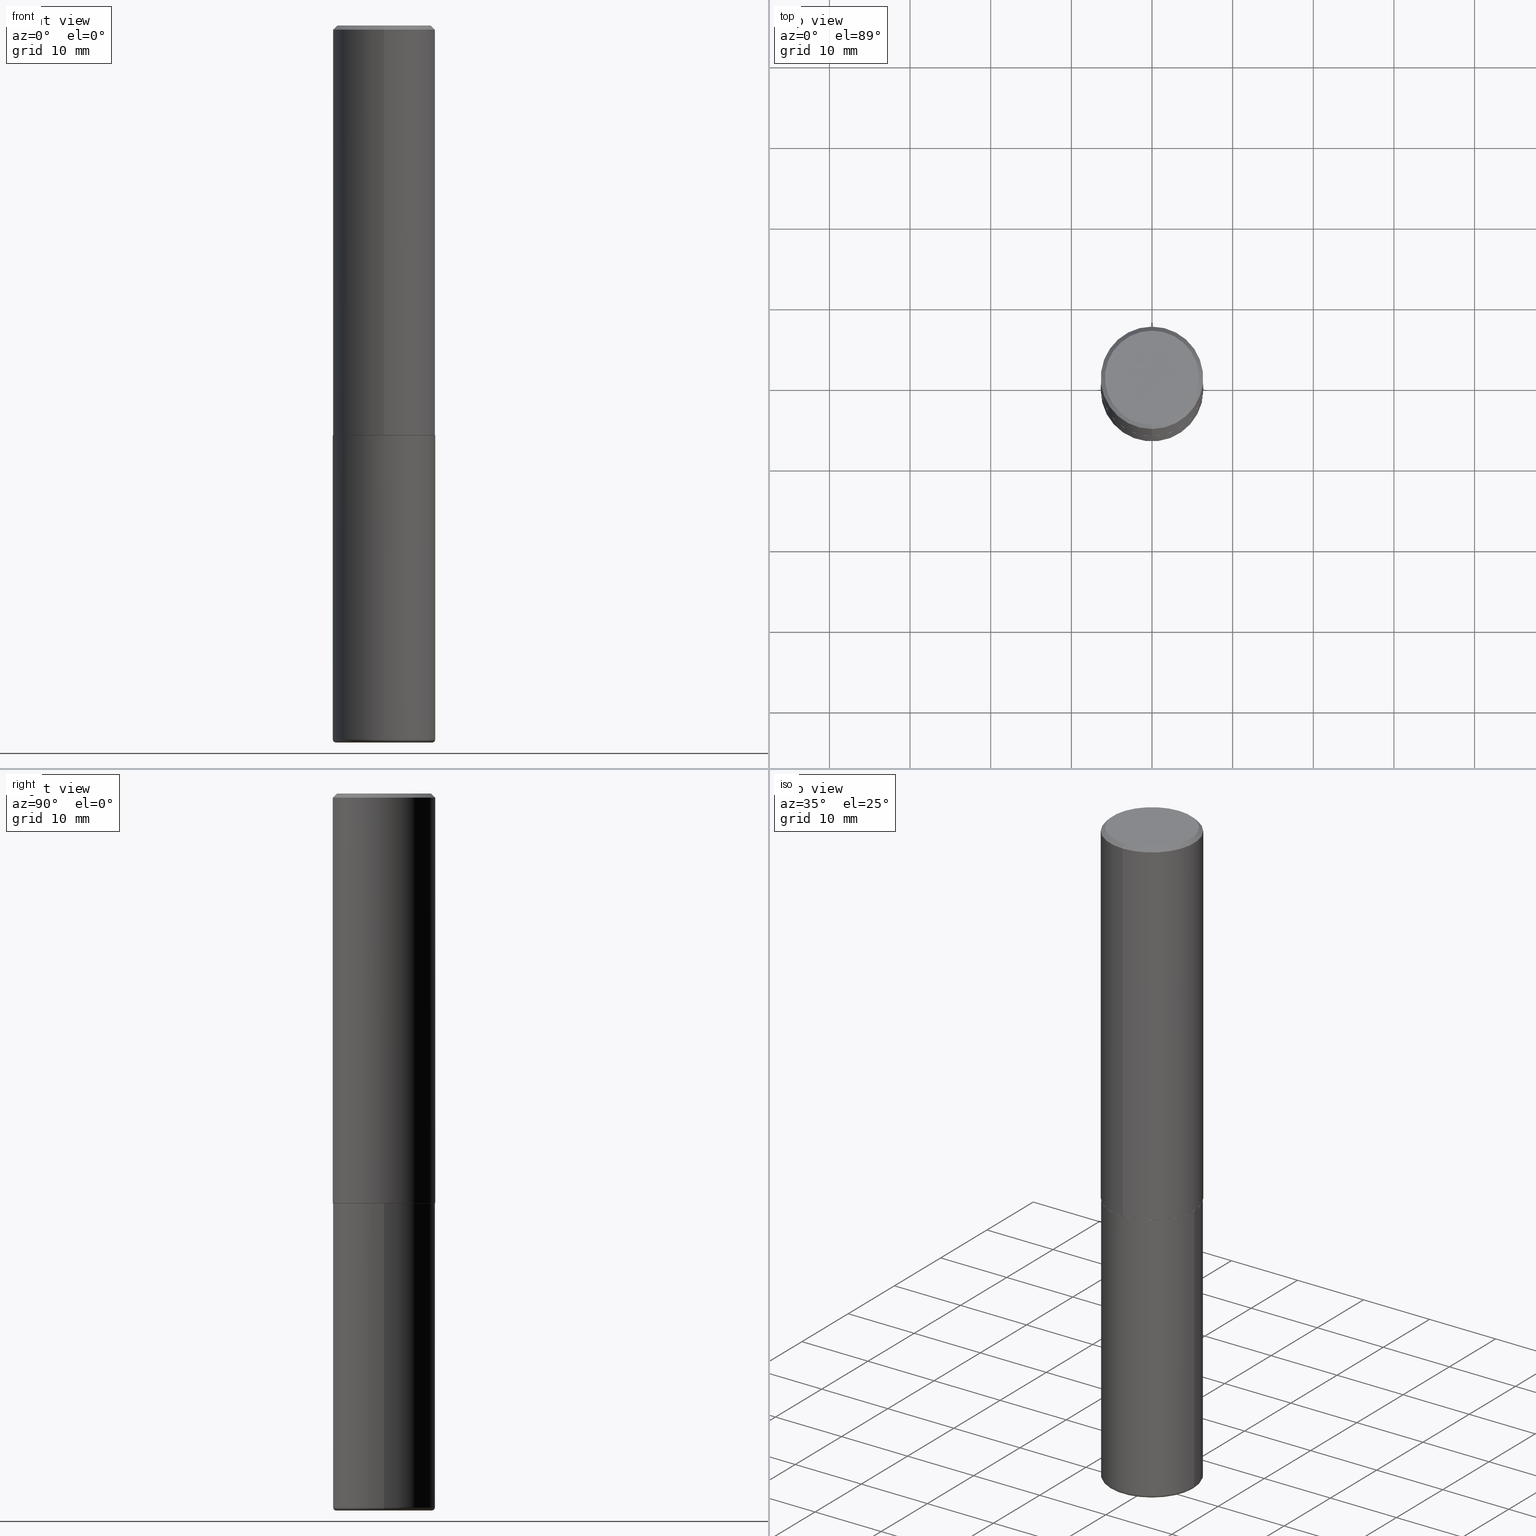
[diagram: canonical four-view strip — front | top / right | iso, engineering-drawing reading convention]
A machine part, canonical four-view strip (front | top / right | iso — engineering-drawing reading convention). The complete STEP part file that produces these views, byte-faithful:
ISO-10303-21;
HEADER;
FILE_DESCRIPTION (( 'STEP AP203' ),
    '1' );
FILE_NAME ('37527.STEP',
    '2024-03-02T03:22:55',
    ( '' ),
    ( '' ),
    'SwSTEP 2.0',
    'SolidWorks 2023',
    '' );
FILE_SCHEMA (( 'CONFIG_CONTROL_DESIGN' ));
ENDSEC;

DATA;
#1 = VECTOR ( 'NONE', #283, 39.37007874015748143 ) ;
#2 = CC_DESIGN_DATE_AND_TIME_ASSIGNMENT ( #41, #36, ( #155 ) ) ;
#3 = LINE ( 'NONE', #359, #1 ) ;
#4 = PERSON_AND_ORGANIZATION ( #214, #29 ) ;
#5 = CARTESIAN_POINT ( 'NONE',  ( 4.891474366573822799E-29, -6.982194015116654415E-15, -1.999999999999999778 ) ) ;
#6 = CARTESIAN_POINT ( 'NONE',  ( 1.745740669421566875E-15, 0.2499999999999999167, -0.02000000000000092676 ) ) ;
#7 = AXIS2_PLACEMENT_3D ( 'NONE', #293, #139, #255 ) ;
#8 = APPROVAL_DATE_TIME ( #319, #95 ) ;
#9 = ADVANCED_FACE ( 'NONE', ( #345 ), #152, .F. ) ;
#10 = DIRECTION ( 'NONE',  ( -6.982962677686265922E-15, -1.000000000000000000, 3.483106191921935554E-15 ) ) ;
#11 = APPROVAL_STATUS ( 'not_yet_approved' ) ;
#12 = CARTESIAN_POINT ( 'NONE',  ( 8.559140821647976968E-29, -1.222018468595100619E-14, -3.499999999999999112 ) ) ;
#13 = DIRECTION ( 'NONE',  ( 1.000000000000000000, -6.982962677686266711E-15, 4.883557194083112901E-29 ) ) ;
#14 = CARTESIAN_POINT ( 'NONE',  ( 1.776356839400276103E-15, 0.2499999999999933109, -1.999000000000000554 ) ) ;
#15 = AXIS2_PLACEMENT_3D ( 'NONE', #49, #404, #141 ) ;
#16 = DIRECTION ( 'NONE',  ( 6.982962677686265922E-15, 1.000000000000000000, -3.483106191921935554E-15 ) ) ;
#17 = CARTESIAN_POINT ( 'NONE',  ( 0.000000000000000000, 0.000000000000000000, 0.000000000000000000 ) ) ;
#18 = VERTEX_POINT ( 'NONE', #326 ) ;
#19 = VERTEX_POINT ( 'NONE', #146 ) ;
#20 = EDGE_CURVE ( 'NONE', #56, #307, #313, .T. ) ;
#21 = AXIS2_PLACEMENT_3D ( 'NONE', #46, #165, #324 ) ;
#22 = DIRECTION ( 'NONE',  ( -1.000000000000000000, 7.105427357601050768E-15, 0.000000000000000000 ) ) ;
#23 = ORIENTED_EDGE ( 'NONE', *, *, #122, .F. ) ;
#24 = ORIENTED_EDGE ( 'NONE', *, *, #344, .T. ) ;
#25 = ADVANCED_FACE ( 'NONE', ( #403 ), #124, .T. ) ;
#26 = EDGE_LOOP ( 'NONE', ( #144, #89, #304, #202 ) ) ;
#27 = EDGE_LOOP ( 'NONE', ( #181, #273, #342, #340 ) ) ;
#28 = AXIS2_PLACEMENT_3D ( 'NONE', #114, #230, #333 ) ;
#29 = ORGANIZATION ( 'UNSPECIFIED', 'UNSPECIFIED', '' ) ;
#30 = ORIENTED_EDGE ( 'NONE', *, *, #83, .T. ) ;
#31 = CARTESIAN_POINT ( 'NONE',  ( 4.891474366573822799E-29, -6.982194015116654415E-15, -1.999999999999999778 ) ) ;
#32 = CARTESIAN_POINT ( 'NONE',  ( 0.2500000000000000000, -1.745740669421566678E-15, 1.219044193948983948E-29 ) ) ;
#33 = ADVANCED_FACE ( 'NONE', ( #104 ), #231, .T. ) ;
#34 = PERSON_AND_ORGANIZATION ( #214, #29 ) ;
#35 = CARTESIAN_POINT ( 'NONE',  ( 4.891474366573836672E-31, -6.982194015116674235E-17, -0.02000000000000005593 ) ) ;
#36 = DATE_TIME_ROLE ( 'creation_date' ) ;
#37 = FACE_OUTER_BOUND ( 'NONE', #335, .T. ) ;
#38 = CARTESIAN_POINT ( 'NONE',  ( 8.559140821647976968E-29, -1.222018468595100619E-14, -3.499999999999999112 ) ) ;
#39 = APPROVAL_STATUS ( 'not_yet_approved' ) ;
#40 = CIRCLE ( 'NONE', #263, 0.2500000000000002776 ) ;
#41 = DATE_AND_TIME ( #363, #276 ) ;
#42 = DIRECTION ( 'NONE',  ( -6.982962677686265922E-15, -1.000000000000000000, 3.278217592397112312E-15 ) ) ;
#43 = EDGE_CURVE ( 'NONE', #373, #56, #58, .T. ) ;
#44 = DIRECTION ( 'NONE',  ( -6.982962677686265922E-15, -1.000000000000000000, 3.483106191921935554E-15 ) ) ;
#45 = CALENDAR_DATE ( 2024, 1, 3 ) ;
#46 = CARTESIAN_POINT ( 'NONE',  ( 8.522458789555200771E-29, -1.216781246586836108E-14, -3.484999999999999432 ) ) ;
#47 = DIRECTION ( 'NONE',  ( -2.445737183286911680E-29, 3.491097007558327602E-15, 1.000000000000000000 ) ) ;
#48 = EDGE_CURVE ( 'NONE', #118, #18, #397, .T. ) ;
#49 = CARTESIAN_POINT ( 'NONE',  ( 4.890937612370272633E-29, -6.982962677686290376E-15, -1.999999999999999778 ) ) ;
#50 = FACE_OUTER_BOUND ( 'NONE', #177, .T. ) ;
#51 = AXIS2_PLACEMENT_3D ( 'NONE', #162, #367, #107 ) ;
#52 = DIRECTION ( 'NONE',  ( 5.024295867788576727E-15, 0.7071067811866224018, 0.7071067811864726327 ) ) ;
#53 = DIRECTION ( 'NONE',  ( 7.105427357601001859E-15, 1.000000000000000000, -3.491481338843145583E-15 ) ) ;
#54 = CC_DESIGN_APPROVAL ( #409, ( #155 ) ) ;
#55 = ORIENTED_EDGE ( 'NONE', *, *, #92, .T. ) ;
#56 = VERTEX_POINT ( 'NONE', #408 ) ;
#57 = ORIENTED_EDGE ( 'NONE', *, *, #399, .T. ) ;
#58 = LINE ( 'NONE', #112, #60 ) ;
#59 = VERTEX_POINT ( 'NONE', #336 ) ;
#60 = VECTOR ( 'NONE', #237, 39.37007874015748143 ) ;
#61 = AXIS2_PLACEMENT_3D ( 'NONE', #137, #401, #44 ) ;
#62 = APPLICATION_PROTOCOL_DEFINITION ( 'international standard', 'config_control_design', 1994, #239 ) ;
#63 = EDGE_LOOP ( 'NONE', ( #151, #305 ) ) ;
#64 = DIRECTION ( 'NONE',  ( -2.445468806185136597E-29, 3.491481338843145583E-15, 1.000000000000000000 ) ) ;
#65 = DIRECTION ( 'NONE',  ( 4.937700262164546464E-15, 0.7071067811865447972, -0.7071067811865500152 ) ) ;
#66 = CLOSED_SHELL ( 'NONE', ( #210, #262, #329, #351, #297, #33, #9, #389 ) ) ;
#67 = AXIS2_PLACEMENT_3D ( 'NONE', #17, #203, #370 ) ;
#68 =( CONVERSION_BASED_UNIT ( 'INCH', #355 ) LENGTH_UNIT ( ) NAMED_UNIT ( #353 ) );
#69 = CARTESIAN_POINT ( 'NONE',  ( -0.2500000000000000000, -7.799030732377074474E-15, -1.999999999999999778 ) ) ;
#70 = CIRCLE ( 'NONE', #265, 0.2349999999999999867 ) ;
#71 = DATE_AND_TIME ( #400, #385 ) ;
#72 = PRODUCT_RELATED_PRODUCT_CATEGORY ( 'detail', '', ( #136 ) ) ;
#73 = LINE ( 'NONE', #279, #184 ) ;
#74 = CARTESIAN_POINT ( 'NONE',  ( 0.2500000000000000000, -8.728703347107857054E-15, -1.999999999999999778 ) ) ;
#75 = DIRECTION ( 'NONE',  ( 1.000000000000000000, -6.982962677686271444E-15, 0.000000000000000000 ) ) ;
#76 = ORIENTED_EDGE ( 'NONE', *, *, #167, .T. ) ;
#77 = EDGE_CURVE ( 'NONE', #18, #272, #200, .T. ) ;
#78 = ORIENTED_EDGE ( 'NONE', *, *, #316, .T. ) ;
#79 =( NAMED_UNIT ( * ) SI_UNIT ( $, .STERADIAN. ) SOLID_ANGLE_UNIT ( ) );
#80 = LINE ( 'NONE', #375, #207 ) ;
#81 = ORIENTED_EDGE ( 'NONE', *, *, #197, .T. ) ;
#82 = UNCERTAINTY_MEASURE_WITH_UNIT (LENGTH_MEASURE( 1.000000000000000082E-05 ), #68, 'distance_accuracy_value', 'NONE');
#83 = EDGE_CURVE ( 'NONE', #328, #343, #306, .T. ) ;
#84 = ORIENTED_EDGE ( 'NONE', *, *, #226, .F. ) ;
#85 = ORIENTED_EDGE ( 'NONE', *, *, #327, .F. ) ;
#86 = CYLINDRICAL_SURFACE ( 'NONE', #67, 0.2500000000000000000 ) ;
#87 = EDGE_LOOP ( 'NONE', ( #410, #85 ) ) ;
#88 = DIRECTION ( 'NONE',  ( -6.982962677686265133E-15, -1.000000000000000000, 3.291383124896702687E-15 ) ) ;
#89 = ORIENTED_EDGE ( 'NONE', *, *, #232, .T. ) ;
#90 = LINE ( 'NONE', #6, #398 ) ;
#91 = EDGE_LOOP ( 'NONE', ( #264, #78 ) ) ;
#92 = EDGE_CURVE ( 'NONE', #59, #118, #108, .T. ) ;
#93 = APPROVAL_ROLE ( '' ) ;
#94 = EDGE_CURVE ( 'NONE', #307, #56, #40, .T. ) ;
#95 = APPROVAL ( #127, 'UNSPECIFIED' ) ;
#96 = LOCAL_TIME ( 22, 22, 55.00000000000000000, #250 ) ;
#97 = CARTESIAN_POINT ( 'NONE',  ( 0.2499999999999999167, -1.391355313528992618E-14, -3.484999999999999432 ) ) ;
#98 = DIRECTION ( 'NONE',  ( -6.982962677686265133E-15, -1.000000000000000000, 3.291383124896702687E-15 ) ) ;
#99 = PERSON_AND_ORGANIZATION ( #214, #29 ) ;
#100 = DIRECTION ( 'NONE',  ( 2.445737183286911680E-29, -3.491097007558327602E-15, -1.000000000000000000 ) ) ;
#101 = EDGE_CURVE ( 'NONE', #272, #328, #219, .T. ) ;
#102 = APPROVAL_PERSON_ORGANIZATION ( #4, #95, #93 ) ;
#103 = VERTEX_POINT ( 'NONE', #183 ) ;
#104 = FACE_OUTER_BOUND ( 'NONE', #303, .T. ) ;
#105 = PLANE ( 'NONE',  #110 ) ;
#106 = EDGE_CURVE ( 'NONE', #373, #103, #362, .T. ) ;
#107 = DIRECTION ( 'NONE',  ( 1.000000000000000000, 0.000000000000000000, 0.000000000000000000 ) ) ;
#108 = CIRCLE ( 'NONE', #212, 0.2349999999999999867 ) ;
#109 = CIRCLE ( 'NONE', #201, 0.2489999999999999991 ) ;
#110 = AXIS2_PLACEMENT_3D ( 'NONE', #189, #280, #248 ) ;
#111 = SECURITY_CLASSIFICATION ( '', '', #218 ) ;
#112 = CARTESIAN_POINT ( 'NONE',  ( -1.738757706743831162E-15, -0.2490000000000069658, -1.999999999999998890 ) ) ;
#113 = EDGE_CURVE ( 'NONE', #19, #245, #287, .T. ) ;
#114 = CARTESIAN_POINT ( 'NONE',  ( 8.522458789555200771E-29, -1.216781246586836108E-14, -3.484999999999999432 ) ) ;
#115 = CC_DESIGN_PERSON_AND_ORGANIZATION_ASSIGNMENT ( #285, #171, ( #332 ) ) ;
#116 = AXIS2_PLACEMENT_3D ( 'NONE', #172, #406, #360 ) ;
#117 = CARTESIAN_POINT ( 'NONE',  ( 0.000000000000000000, 0.000000000000000000, 0.000000000000000000 ) ) ;
#118 = VERTEX_POINT ( 'NONE', #318 ) ;
#119 = ORIENTED_EDGE ( 'NONE', *, *, #48, .T. ) ;
#120 = FACE_OUTER_BOUND ( 'NONE', #180, .T. ) ;
#121 = ORIENTED_EDGE ( 'NONE', *, *, #311, .T. ) ;
#122 = EDGE_CURVE ( 'NONE', #310, #387, #308, .T. ) ;
#123 = DIRECTION ( 'NONE',  ( 2.445737183286911400E-29, -3.491097007558327602E-15, -1.000000000000000000 ) ) ;
#124 = TOROIDAL_SURFACE ( 'NONE', #174, 0.2349999999999999867, 0.01499999999999985720 ) ;
#125 =( GEOMETRIC_REPRESENTATION_CONTEXT ( 3 ) GLOBAL_UNCERTAINTY_ASSIGNED_CONTEXT ( ( #82 ) ) GLOBAL_UNIT_ASSIGNED_CONTEXT ( ( #68, #369, #79 ) ) REPRESENTATION_CONTEXT ( 'NONE', 'WORKASPACE' ) );
#126 = DATE_TIME_ROLE ( 'classification_date' ) ;
#127 = APPROVAL_STATUS ( 'not_yet_approved' ) ;
#128 = DIRECTION ( 'NONE',  ( -2.445468806185136877E-29, 3.491481338843145188E-15, 1.000000000000000000 ) ) ;
#129 = EDGE_CURVE ( 'NONE', #387, #310, #190, .T. ) ;
#130 = CARTESIAN_POINT ( 'NONE',  ( -1.738757706743831162E-15, -0.2490000000000069658, -1.999999999999998890 ) ) ;
#131 = DIRECTION ( 'NONE',  ( -6.982962677686265922E-15, -1.000000000000000000, 3.491097007558327207E-15 ) ) ;
#132 = COORDINATED_UNIVERSAL_TIME_OFFSET ( 5, 0, .BEHIND. ) ;
#133 = AXIS2_PLACEMENT_3D ( 'NONE', #234, #64, #246 ) ;
#134 = AXIS2_PLACEMENT_3D ( 'NONE', #291, #191, #131 ) ;
#135 = FACE_OUTER_BOUND ( 'NONE', #26, .T. ) ;
#136 = PRODUCT ( '37527', '37527', '', ( #407 ) ) ;
#137 = CARTESIAN_POINT ( 'NONE',  ( 4.891474366573836672E-31, -6.982194015116674235E-17, -0.02000000000000005593 ) ) ;
#138 = APPROVAL_ROLE ( '' ) ;
#139 = DIRECTION ( 'NONE',  ( -2.445468806185136597E-29, 3.491481338843145583E-15, 1.000000000000000000 ) ) ;
#140 = CONICAL_SURFACE ( 'NONE', #365, 0.2489999999999999991, 0.7853981633975507526 ) ;
#141 = DIRECTION ( 'NONE',  ( 1.000000000000000000, -6.982962677686266711E-15, 0.000000000000000000 ) ) ;
#142 = PERSON_AND_ORGANIZATION ( #214, #29 ) ;
#143 = DIRECTION ( 'NONE',  ( -2.445468806185136597E-29, 3.491481338843145583E-15, 1.000000000000000000 ) ) ;
#144 = ORIENTED_EDGE ( 'NONE', *, *, #316, .F. ) ;
#145 = ORIENTED_EDGE ( 'NONE', *, *, #77, .T. ) ;
#146 = CARTESIAN_POINT ( 'NONE',  ( 1.675911042644703774E-15, 0.2299999999999999822, -8.286517828745257562E-16 ) ) ;
#147 = ORIENTED_EDGE ( 'NONE', *, *, #83, .F. ) ;
#148 = ORIENTED_EDGE ( 'NONE', *, *, #344, .F. ) ;
#149 = ORIENTED_EDGE ( 'NONE', *, *, #48, .F. ) ;
#150 = AXIS2_PLACEMENT_3D ( 'NONE', #366, #47, #292 ) ;
#151 = ORIENTED_EDGE ( 'NONE', *, *, #106, .F. ) ;
#152 = PLANE ( 'NONE',  #251 ) ;
#153 = CYLINDRICAL_SURFACE ( 'NONE', #259, 0.2500000000000001110 ) ;
#154 = DIRECTION ( 'NONE',  ( -6.982962677686265922E-15, -1.000000000000000000, 3.491097007558327602E-15 ) ) ;
#155 = PRODUCT_DEFINITION ( 'UNKNOWN', '', #332, #296 ) ;
#156 = DIRECTION ( 'NONE',  ( 1.000000000000000000, -6.982962677686266711E-15, 4.876176775795935793E-29 ) ) ;
#157 = DIRECTION ( 'NONE',  ( 6.982962677686265922E-15, 1.000000000000000000, -3.491097007558327602E-15 ) ) ;
#158 = FACE_OUTER_BOUND ( 'NONE', #376, .T. ) ;
#159 = PERSON_AND_ORGANIZATION_ROLE ( 'classification_officer' ) ;
#160 = SHAPE_DEFINITION_REPRESENTATION ( #288, #418 ) ;
#161 = FACE_OUTER_BOUND ( 'NONE', #87, .T. ) ;
#162 = CARTESIAN_POINT ( 'NONE',  ( 0.000000000000000000, 0.000000000000000000, 0.000000000000000000 ) ) ;
#163 = FACE_OUTER_BOUND ( 'NONE', #91, .T. ) ;
#164 = APPROVAL_DATE_TIME ( #71, #409 ) ;
#165 = DIRECTION ( 'NONE',  ( -2.445468806185136597E-29, 3.491481338843145583E-15, 1.000000000000000000 ) ) ;
#166 = AXIS2_PLACEMENT_3D ( 'NONE', #300, #302, #411 ) ;
#167 = EDGE_CURVE ( 'NONE', #307, #387, #80, .T. ) ;
#168 = DIRECTION ( 'NONE',  ( -6.982962677686265133E-15, -1.000000000000000000, 3.291383124896702687E-15 ) ) ;
#169 = APPROVAL_ROLE ( '' ) ;
#170 = DIRECTION ( 'NONE',  ( -2.445468806185136597E-29, 3.491481338843145583E-15, 1.000000000000000000 ) ) ;
#171 = PERSON_AND_ORGANIZATION_ROLE ( 'design_supplier' ) ;
#172 = CARTESIAN_POINT ( 'NONE',  ( 4.891474366573836672E-31, -6.982194015116674235E-17, -0.02000000000000005593 ) ) ;
#173 = ADVANCED_FACE ( 'NONE', ( #254 ), #269, .F. ) ;
#174 = AXIS2_PLACEMENT_3D ( 'NONE', #396, #143, #13 ) ;
#175 = AXIS2_PLACEMENT_3D ( 'NONE', #314, #123, #157 ) ;
#176 = CARTESIAN_POINT ( 'NONE',  ( -1.715124499442882299E-15, -0.2500000000000000555, -0.01999999999999918510 ) ) ;
#177 = EDGE_LOOP ( 'NONE', ( #121, #81, #147, #240 ) ) ;
#178 = ORIENTED_EDGE ( 'NONE', *, *, #20, .F. ) ;
#179 = ORIENTED_EDGE ( 'NONE', *, *, #94, .F. ) ;
#180 = EDGE_LOOP ( 'NONE', ( #405, #76, #23, #215 ) ) ;
#181 = ORIENTED_EDGE ( 'NONE', *, *, #232, .F. ) ;
#182 = ORIENTED_EDGE ( 'NONE', *, *, #361, .F. ) ;
#183 = CARTESIAN_POINT ( 'NONE',  ( 1.772804125721499659E-15, 0.2489999999999930325, -2.000000000000000444 ) ) ;
#184 = VECTOR ( 'NONE', #128, 39.37007874015748143 ) ;
#185 = EDGE_LOOP ( 'NONE', ( #30, #267 ) ) ;
#186 = LOCAL_TIME ( 22, 22, 55.00000000000000000, #224 ) ;
#187 = DIRECTION ( 'NONE',  ( -2.445468806185136877E-29, 3.491481338843145188E-15, 1.000000000000000000 ) ) ;
#188 = CARTESIAN_POINT ( 'NONE',  ( 4.889028629390535480E-29, -6.978702918109095527E-15, -1.998999999999999666 ) ) ;
#189 = CARTESIAN_POINT ( 'NONE',  ( 1.424147052658787775E-28, -4.082765130355326584E-15, -3.499999999999999112 ) ) ;
#190 = CIRCLE ( 'NONE', #61, 0.2500000000000000000 ) ;
#191 = DIRECTION ( 'NONE',  ( -2.445737183286911680E-29, 3.491097007558327602E-15, 1.000000000000000000 ) ) ;
#192 = COORDINATED_UNIVERSAL_TIME_OFFSET ( 5, 0, .BEHIND. ) ;
#193 = CARTESIAN_POINT ( 'NONE',  ( 6.285415214839433991E-46, -8.971934677910720830E-32, -2.569947113611056727E-17 ) ) ;
#194 = AXIS2_PLACEMENT_3D ( 'NONE', #233, #53, #22 ) ;
#195 = APPLICATION_CONTEXT ( 'configuration controlled 3d designs of mechanical parts and assemblies' ) ;
#196 = PERSON_AND_ORGANIZATION_ROLE ( 'creator' ) ;
#197 = EDGE_CURVE ( 'NONE', #18, #343, #73, .T. ) ;
#198 = ORIENTED_EDGE ( 'NONE', *, *, #368, .T. ) ;
#199 = LINE ( 'NONE', #330, #356 ) ;
#200 = CIRCLE ( 'NONE', #28, 0.2500000000000000000 ) ;
#201 = AXIS2_PLACEMENT_3D ( 'NONE', #277, #386, #168 ) ;
#202 = ORIENTED_EDGE ( 'NONE', *, *, #415, .F. ) ;
#203 = DIRECTION ( 'NONE',  ( -2.445468806185136597E-29, 3.491481338843145583E-15, 1.000000000000000000 ) ) ;
#204 = ORIENTED_EDGE ( 'NONE', *, *, #94, .T. ) ;
#205 = CC_DESIGN_PERSON_AND_ORGANIZATION_ASSIGNMENT ( #325, #159, ( #111 ) ) ;
#206 = EDGE_LOOP ( 'NONE', ( #149, #374, #301, #274 ) ) ;
#207 = VECTOR ( 'NONE', #346, 39.37007874015748143 ) ;
#208 = CARTESIAN_POINT ( 'NONE',  ( -1.715124499442882299E-15, -0.2500000000000000555, -0.01999999999999918510 ) ) ;
#209 = DIRECTION ( 'NONE',  ( -2.445737183286911680E-29, 3.491097007558327602E-15, 1.000000000000000000 ) ) ;
#210 = ADVANCED_FACE ( 'NONE', ( #37 ), #140, .T. ) ;
#211 = ORIENTED_EDGE ( 'NONE', *, *, #43, .F. ) ;
#212 = AXIS2_PLACEMENT_3D ( 'NONE', #38, #241, #383 ) ;
#213 = AXIS2_PLACEMENT_3D ( 'NONE', #35, #225, #10 ) ;
#214 = PERSON ( 'UNSPECIFIED', 'UNSPECIFIED', 'UNSPECIFIED', ('UNSPECIFIED'), ('UNSPECIFIED'), ('UNSPECIFIED') ) ;
#215 = ORIENTED_EDGE ( 'NONE', *, *, #399, .F. ) ;
#216 = CARTESIAN_POINT ( 'NONE',  ( 0.000000000000000000, 0.000000000000000000, 0.000000000000000000 ) ) ;
#217 = DIRECTION ( 'NONE',  ( -6.982962677686265133E-15, -1.000000000000000000, 3.291383124896702687E-15 ) ) ;
#218 = SECURITY_CLASSIFICATION_LEVEL ( 'unclassified' ) ;
#219 = LINE ( 'NONE', #32, #243 ) ;
#220 = DATE_AND_TIME ( #45, #186 ) ;
#221 = AXIS2_PLACEMENT_3D ( 'NONE', #352, #209, #414 ) ;
#222 = PLANE ( 'NONE',  #175 ) ;
#223 = ADVANCED_FACE ( 'NONE', ( #158 ), #86, .T. ) ;
#224 = COORDINATED_UNIVERSAL_TIME_OFFSET ( 5, 0, .BEHIND. ) ;
#225 = DIRECTION ( 'NONE',  ( -2.445737183286911680E-29, 3.491097007558327602E-15, 1.000000000000000000 ) ) ;
#226 = EDGE_CURVE ( 'NONE', #59, #272, #377, .T. ) ;
#227 = CC_DESIGN_PERSON_AND_ORGANIZATION_ASSIGNMENT ( #142, #334, ( #136 ) ) ;
#228 = MANIFOLD_SOLID_BREP ( 'Body-Move/Copy2[1]', #354 ) ;
#229 = FACE_OUTER_BOUND ( 'NONE', #206, .T. ) ;
#230 = DIRECTION ( 'NONE',  ( -2.445468806185136597E-29, 3.491481338843145583E-15, 1.000000000000000000 ) ) ;
#231 = CONICAL_SURFACE ( 'NONE', #284, 0.2489999999999999991, 0.7853981633975507526 ) ;
#232 = EDGE_CURVE ( 'NONE', #245, #310, #417, .T. ) ;
#233 = CARTESIAN_POINT ( 'NONE',  ( -0.2349999999999999867, -1.049803703683212495E-14, -3.484999999999999432 ) ) ;
#234 = CARTESIAN_POINT ( 'NONE',  ( 4.890937612370272633E-29, -6.982962677686290376E-15, -1.999999999999999778 ) ) ;
#235 = AXIS2_PLACEMENT_3D ( 'NONE', #193, #261, #286 ) ;
#236 = DIRECTION ( 'NONE',  ( -2.445737183286911680E-29, 3.491097007558327602E-15, 1.000000000000000000 ) ) ;
#237 = DIRECTION ( 'NONE',  ( -4.937700262165053702E-15, -0.7071067811866175168, 0.7071067811864775177 ) ) ;
#238 = ORIENTED_EDGE ( 'NONE', *, *, #197, .F. ) ;
#239 = APPLICATION_CONTEXT ( 'configuration controlled 3d designs of mechanical parts and assemblies' ) ;
#240 = ORIENTED_EDGE ( 'NONE', *, *, #101, .F. ) ;
#241 = DIRECTION ( 'NONE',  ( -2.445468806185136597E-29, 3.491481338843145583E-15, 1.000000000000000000 ) ) ;
#242 = CARTESIAN_POINT ( 'NONE',  ( 4.891474366573822799E-29, -6.982194015116654415E-15, -1.999999999999999778 ) ) ;
#243 = VECTOR ( 'NONE', #187, 39.37007874015748143 ) ;
#244 = AXIS2_PLACEMENT_3D ( 'NONE', #216, #252, #156 ) ;
#245 = VERTEX_POINT ( 'NONE', #413 ) ;
#246 = DIRECTION ( 'NONE',  ( 1.000000000000000000, -6.982962677686266711E-15, 0.000000000000000000 ) ) ;
#247 = PERSON_AND_ORGANIZATION ( #214, #29 ) ;
#248 = DIRECTION ( 'NONE',  ( -1.000000000000000000, 6.982962677686265922E-15, -4.876176775795935793E-29 ) ) ;
#249 = APPLICATION_PROTOCOL_DEFINITION ( 'international standard', 'config_control_design', 1994, #195 ) ;
#250 = COORDINATED_UNIVERSAL_TIME_OFFSET ( 5, 0, .BEHIND. ) ;
#251 = AXIS2_PLACEMENT_3D ( 'NONE', #242, #384, #154 ) ;
#252 = DIRECTION ( 'NONE',  ( -2.445468806185136597E-29, 3.491481338843145583E-15, 1.000000000000000000 ) ) ;
#253 = CC_DESIGN_SECURITY_CLASSIFICATION ( #111, ( #332 ) ) ;
#254 = FACE_OUTER_BOUND ( 'NONE', #185, .T. ) ;
#255 = DIRECTION ( 'NONE',  ( 1.000000000000000000, -6.982962677686266711E-15, 4.883557194083112901E-29 ) ) ;
#256 = CALENDAR_DATE ( 2024, 1, 3 ) ;
#257 = FACE_OUTER_BOUND ( 'NONE', #27, .T. ) ;
#258 = CC_DESIGN_PERSON_AND_ORGANIZATION_ASSIGNMENT ( #247, #321, ( #155 ) ) ;
#259 = AXIS2_PLACEMENT_3D ( 'NONE', #117, #236, #380 ) ;
#260 = CC_DESIGN_APPROVAL ( #95, ( #111 ) ) ;
#261 = DIRECTION ( 'NONE',  ( -2.445737183286911680E-29, 3.491097007558327602E-15, 1.000000000000000000 ) ) ;
#262 = ADVANCED_FACE ( 'NONE', ( #120 ), #153, .T. ) ;
#263 = AXIS2_PLACEMENT_3D ( 'NONE', #188, #315, #42 ) ;
#264 = ORIENTED_EDGE ( 'NONE', *, *, #113, .T. ) ;
#265 = AXIS2_PLACEMENT_3D ( 'NONE', #12, #170, #75 ) ;
#266 = CC_DESIGN_PERSON_AND_ORGANIZATION_ASSIGNMENT ( #99, #196, ( #332 ) ) ;
#267 = ORIENTED_EDGE ( 'NONE', *, *, #361, .T. ) ;
#268 = ADVANCED_FACE ( 'NONE', ( #50 ), #388, .T. ) ;
#269 = PLANE ( 'NONE',  #271 ) ;
#270 = EDGE_LOOP ( 'NONE', ( #350, #204, #57, #412 ) ) ;
#271 = AXIS2_PLACEMENT_3D ( 'NONE', #394, #322, #364 ) ;
#272 = VERTEX_POINT ( 'NONE', #97 ) ;
#273 = ORIENTED_EDGE ( 'NONE', *, *, #113, .F. ) ;
#274 = ORIENTED_EDGE ( 'NONE', *, *, #77, .F. ) ;
#275 = CONICAL_SURFACE ( 'NONE', #116, 0.2500000000000000000, 0.7853981633974481680 ) ;
#276 = LOCAL_TIME ( 22, 22, 55.00000000000000000, #132 ) ;
#277 = CARTESIAN_POINT ( 'NONE',  ( 4.891474366573822799E-29, -6.982194015116654415E-15, -1.999999999999999778 ) ) ;
#278 = COORDINATED_UNIVERSAL_TIME_OFFSET ( 5, 0, .BEHIND. ) ;
#279 = CARTESIAN_POINT ( 'NONE',  ( -0.2500000000000000000, 1.776356839400250465E-15, -1.229733772563726445E-29 ) ) ;
#280 = DIRECTION ( 'NONE',  ( 2.438088387897960049E-29, -3.491481338843145188E-15, -1.000000000000000000 ) ) ;
#281 = ADVANCED_FACE ( 'NONE', ( #161 ), #105, .T. ) ;
#282 = APPROVAL ( #11, 'UNSPECIFIED' ) ;
#283 = DIRECTION ( 'NONE',  ( -2.445737183286911680E-29, 3.491097007558327602E-15, 1.000000000000000000 ) ) ;
#284 = AXIS2_PLACEMENT_3D ( 'NONE', #312, #382, #88 ) ;
#285 = PERSON_AND_ORGANIZATION ( #214, #29 ) ;
#286 = DIRECTION ( 'NONE',  ( -6.982962677686265922E-15, -1.000000000000000000, 3.491097007558327207E-15 ) ) ;
#287 = CIRCLE ( 'NONE', #134, 0.2299999999999999822 ) ;
#288 = PRODUCT_DEFINITION_SHAPE ( 'NONE', 'NONE',  #155 ) ;
#289 = DIRECTION ( 'NONE',  ( -2.445737183286911680E-29, 3.491097007558327602E-15, 1.000000000000000000 ) ) ;
#290 = APPROVAL_DATE_TIME ( #391, #282 ) ;
#291 = CARTESIAN_POINT ( 'NONE',  ( 6.285415214839433991E-46, -8.971934677910720830E-32, -2.569947113611056727E-17 ) ) ;
#292 = DIRECTION ( 'NONE',  ( -6.982962677686266711E-15, -1.000000000000000000, 3.491097007558327996E-15 ) ) ;
#293 = CARTESIAN_POINT ( 'NONE',  ( 8.522458789555200771E-29, -1.216781246586836108E-14, -3.484999999999999432 ) ) ;
#294 = CIRCLE ( 'NONE', #21, 0.2500000000000000000 ) ;
#295 = APPROVAL_PERSON_ORGANIZATION ( #34, #282, #138 ) ;
#296 = DESIGN_CONTEXT ( 'detailed design', #239, 'design' ) ;
#297 = ADVANCED_FACE ( 'NONE', ( #358 ), #320, .T. ) ;
#298 = EDGE_LOOP ( 'NONE', ( #55, #119, #379, #84 ) ) ;
#299 = AXIS2_PLACEMENT_3D ( 'NONE', #402, #100, #16 ) ;
#300 = CARTESIAN_POINT ( 'NONE',  ( 0.2349999999999999867, -1.380880869512463439E-14, -3.484999999999999432 ) ) ;
#301 = ORIENTED_EDGE ( 'NONE', *, *, #226, .T. ) ;
#302 = DIRECTION ( 'NONE',  ( -6.982962677686266711E-15, -1.000000000000000000, 3.491481338843145583E-15 ) ) ;
#303 = EDGE_LOOP ( 'NONE', ( #148, #198, #337, #179 ) ) ;
#304 = ORIENTED_EDGE ( 'NONE', *, *, #122, .T. ) ;
#305 = ORIENTED_EDGE ( 'NONE', *, *, #368, .F. ) ;
#306 = CIRCLE ( 'NONE', #133, 0.2500000000000000000 ) ;
#307 = VERTEX_POINT ( 'NONE', #14 ) ;
#308 = CIRCLE ( 'NONE', #213, 0.2500000000000000000 ) ;
#309 = DIRECTION ( 'NONE',  ( -4.851104656540962697E-15, -0.7071067811865497932, -0.7071067811865451302 ) ) ;
#310 = VERTEX_POINT ( 'NONE', #176 ) ;
#311 = EDGE_CURVE ( 'NONE', #272, #18, #294, .T. ) ;
#312 = CARTESIAN_POINT ( 'NONE',  ( 4.891474366573822799E-29, -6.982194015116654415E-15, -1.999999999999999778 ) ) ;
#313 = CIRCLE ( 'NONE', #221, 0.2500000000000002776 ) ;
#314 = CARTESIAN_POINT ( 'NONE',  ( 1.606081415867841067E-15, 0.2299999999999999822, -8.158020473064706174E-16 ) ) ;
#315 = DIRECTION ( 'NONE',  ( -2.445737183286911680E-29, 3.491097007558327602E-15, 1.000000000000000000 ) ) ;
#316 = EDGE_CURVE ( 'NONE', #245, #19, #371, .T. ) ;
#317 = AXIS2_PLACEMENT_3D ( 'NONE', #31, #289, #98 ) ;
#318 = CARTESIAN_POINT ( 'NONE',  ( -0.2349999999999999867, -1.047093244169144191E-14, -3.499999999999999112 ) ) ;
#319 = DATE_AND_TIME ( #357, #96 ) ;
#320 = CYLINDRICAL_SURFACE ( 'NONE', #150, 0.2500000000000001110 ) ;
#321 = PERSON_AND_ORGANIZATION_ROLE ( 'creator' ) ;
#322 = DIRECTION ( 'NONE',  ( 2.438088387897960049E-29, -3.491481338843145188E-15, -1.000000000000000000 ) ) ;
#323 = APPROVAL_PERSON_ORGANIZATION ( #341, #409, #169 ) ;
#324 = DIRECTION ( 'NONE',  ( 1.000000000000000000, -6.982962677686262766E-15, 0.000000000000000000 ) ) ;
#325 = PERSON_AND_ORGANIZATION ( #214, #29 ) ;
#326 = CARTESIAN_POINT ( 'NONE',  ( -0.2499999999999999167, -1.039145562646811219E-14, -3.484999999999999432 ) ) ;
#327 = EDGE_CURVE ( 'NONE', #118, #59, #70, .T. ) ;
#328 = VERTEX_POINT ( 'NONE', #74 ) ;
#329 = ADVANCED_FACE ( 'NONE', ( #135 ), #275, .T. ) ;
#330 = CARTESIAN_POINT ( 'NONE',  ( 1.769251412042698169E-15, 0.2489999999999930325, -2.000000000000000444 ) ) ;
#331 = CIRCLE ( 'NONE', #15, 0.2500000000000000000 ) ;
#332 = PRODUCT_DEFINITION_FORMATION_WITH_SPECIFIED_SOURCE ( 'ANY', '', #136, .NOT_KNOWN. ) ;
#333 = DIRECTION ( 'NONE',  ( 1.000000000000000000, -6.982962677686262766E-15, 0.000000000000000000 ) ) ;
#334 = PERSON_AND_ORGANIZATION_ROLE ( 'design_owner' ) ;
#335 = EDGE_LOOP ( 'NONE', ( #381, #24, #178, #211 ) ) ;
#336 = CARTESIAN_POINT ( 'NONE',  ( 0.2349999999999999867, -1.386118091520728107E-14, -3.499999999999999112 ) ) ;
#337 = ORIENTED_EDGE ( 'NONE', *, *, #43, .T. ) ;
#338 = VECTOR ( 'NONE', #309, 39.37007874015748854 ) ;
#339 = ADVANCED_FACE ( 'NONE', ( #229 ), #348, .T. ) ;
#340 = ORIENTED_EDGE ( 'NONE', *, *, #129, .T. ) ;
#341 = PERSON_AND_ORGANIZATION ( #214, #29 ) ;
#342 = ORIENTED_EDGE ( 'NONE', *, *, #415, .T. ) ;
#343 = VERTEX_POINT ( 'NONE', #69 ) ;
#344 = EDGE_CURVE ( 'NONE', #103, #307, #199, .T. ) ;
#345 = FACE_OUTER_BOUND ( 'NONE', #63, .T. ) ;
#346 = DIRECTION ( 'NONE',  ( -2.445737183286911680E-29, 3.491097007558327602E-15, 1.000000000000000000 ) ) ;
#347 = ORIENTED_EDGE ( 'NONE', *, *, #101, .T. ) ;
#348 = TOROIDAL_SURFACE ( 'NONE', #7, 0.2349999999999999867, 0.01499999999999985720 ) ;
#349 = DIRECTION ( 'NONE',  ( -2.445737183286911680E-29, 3.491097007558327602E-15, 1.000000000000000000 ) ) ;
#350 = ORIENTED_EDGE ( 'NONE', *, *, #167, .F. ) ;
#351 = ADVANCED_FACE ( 'NONE', ( #257 ), #416, .T. ) ;
#352 = CARTESIAN_POINT ( 'NONE',  ( 4.889028629390535480E-29, -6.978702918109095527E-15, -1.998999999999999666 ) ) ;
#353 = DIMENSIONAL_EXPONENTS ( 1.000000000000000000, 0.000000000000000000, 0.000000000000000000, 0.000000000000000000, 0.000000000000000000, 0.000000000000000000, 0.000000000000000000 ) ;
#354 = CLOSED_SHELL ( 'NONE', ( #268, #25, #173, #223, #339, #281 ) ) ;
#355 = LENGTH_MEASURE_WITH_UNIT ( LENGTH_MEASURE( 0.02539999999999999897 ), #393 );
#356 = VECTOR ( 'NONE', #52, 39.37007874015748143 ) ;
#357 = CALENDAR_DATE ( 2024, 1, 3 ) ;
#358 = FACE_OUTER_BOUND ( 'NONE', #270, .T. ) ;
#359 = CARTESIAN_POINT ( 'NONE',  ( -1.745740669421567467E-15, -0.2500000000000001110, 8.727742518895823935E-16 ) ) ;
#360 = DIRECTION ( 'NONE',  ( 6.982962677686265922E-15, 1.000000000000000000, -3.483106191921935554E-15 ) ) ;
#361 = EDGE_CURVE ( 'NONE', #343, #328, #331, .T. ) ;
#362 = CIRCLE ( 'NONE', #317, 0.2489999999999999991 ) ;
#363 = CALENDAR_DATE ( 2024, 1, 3 ) ;
#364 = DIRECTION ( 'NONE',  ( -1.000000000000000000, 6.982962677686265922E-15, -4.876176775795935793E-29 ) ) ;
#365 = AXIS2_PLACEMENT_3D ( 'NONE', #5, #349, #217 ) ;
#366 = CARTESIAN_POINT ( 'NONE',  ( 0.000000000000000000, 0.000000000000000000, 0.000000000000000000 ) ) ;
#367 = DIRECTION ( 'NONE',  ( 0.000000000000000000, 0.000000000000000000, 1.000000000000000000 ) ) ;
#368 = EDGE_CURVE ( 'NONE', #103, #373, #109, .T. ) ;
#369 =( NAMED_UNIT ( * ) PLANE_ANGLE_UNIT ( ) SI_UNIT ( $, .RADIAN. ) );
#370 = DIRECTION ( 'NONE',  ( 1.000000000000000000, -6.982962677686266711E-15, 4.876176775795935793E-29 ) ) ;
#371 = CIRCLE ( 'NONE', #235, 0.2299999999999999822 ) ;
#372 = CC_DESIGN_APPROVAL ( #282, ( #332 ) ) ;
#373 = VERTEX_POINT ( 'NONE', #130 ) ;
#374 = ORIENTED_EDGE ( 'NONE', *, *, #327, .T. ) ;
#375 = CARTESIAN_POINT ( 'NONE',  ( 1.776356839400251254E-15, 0.2500000000000001110, -8.727742518895823935E-16 ) ) ;
#376 = EDGE_LOOP ( 'NONE', ( #238, #145, #347, #182 ) ) ;
#377 = CIRCLE ( 'NONE', #166, 0.01499999999999987454 ) ;
#378 = LOCAL_TIME ( 22, 22, 55.00000000000000000, #278 ) ;
#379 = ORIENTED_EDGE ( 'NONE', *, *, #311, .F. ) ;
#380 = DIRECTION ( 'NONE',  ( -6.982962677686266711E-15, -1.000000000000000000, 3.491097007558327996E-15 ) ) ;
#381 = ORIENTED_EDGE ( 'NONE', *, *, #106, .T. ) ;
#382 = DIRECTION ( 'NONE',  ( -2.445737183286911680E-29, 3.491097007558327602E-15, 1.000000000000000000 ) ) ;
#383 = DIRECTION ( 'NONE',  ( 1.000000000000000000, -6.982962677686271444E-15, 0.000000000000000000 ) ) ;
#384 = DIRECTION ( 'NONE',  ( -2.445737183286911400E-29, 3.491097007558327602E-15, 1.000000000000000000 ) ) ;
#385 = LOCAL_TIME ( 22, 22, 55.00000000000000000, #192 ) ;
#386 = DIRECTION ( 'NONE',  ( -2.445737183286911680E-29, 3.491097007558327602E-15, 1.000000000000000000 ) ) ;
#387 = VERTEX_POINT ( 'NONE', #390 ) ;
#388 = CYLINDRICAL_SURFACE ( 'NONE', #244, 0.2500000000000000000 ) ;
#389 = ADVANCED_FACE ( 'NONE', ( #163 ), #222, .F. ) ;
#390 = CARTESIAN_POINT ( 'NONE',  ( 1.745740669421566875E-15, 0.2499999999999999167, -0.02000000000000092676 ) ) ;
#391 = DATE_AND_TIME ( #256, #378 ) ;
#392 = CC_DESIGN_DATE_AND_TIME_ASSIGNMENT ( #220, #126, ( #111 ) ) ;
#393 =( LENGTH_UNIT ( ) NAMED_UNIT ( * ) SI_UNIT ( $, .METRE. ) );
#394 = CARTESIAN_POINT ( 'NONE',  ( 4.890937612370272633E-29, -6.982962677686290376E-15, -1.999999999999999778 ) ) ;
#395 = MANIFOLD_SOLID_BREP ( 'Body-Move/Copy2[2]', #66 ) ;
#396 = CARTESIAN_POINT ( 'NONE',  ( 8.522458789555200771E-29, -1.216781246586836108E-14, -3.484999999999999432 ) ) ;
#397 = CIRCLE ( 'NONE', #194, 0.01499999999999987454 ) ;
#398 = VECTOR ( 'NONE', #65, 39.37007874015748854 ) ;
#399 = EDGE_CURVE ( 'NONE', #56, #310, #3, .T. ) ;
#400 = CALENDAR_DATE ( 2024, 1, 3 ) ;
#401 = DIRECTION ( 'NONE',  ( -2.445737183286911680E-29, 3.491097007558327602E-15, 1.000000000000000000 ) ) ;
#402 = CARTESIAN_POINT ( 'NONE',  ( 4.891474366573836672E-31, -6.982194015116674235E-17, -0.02000000000000005593 ) ) ;
#403 = FACE_OUTER_BOUND ( 'NONE', #298, .T. ) ;
#404 = DIRECTION ( 'NONE',  ( -2.445468806185136597E-29, 3.491481338843145583E-15, 1.000000000000000000 ) ) ;
#405 = ORIENTED_EDGE ( 'NONE', *, *, #20, .T. ) ;
#406 = DIRECTION ( 'NONE',  ( 2.445737183286911680E-29, -3.491097007558327602E-15, -1.000000000000000000 ) ) ;
#407 = MECHANICAL_CONTEXT ( 'NONE', #195, 'mechanical' ) ;
#408 = CARTESIAN_POINT ( 'NONE',  ( -1.745740669421519543E-15, -0.2500000000000072164, -1.998999999999998778 ) ) ;
#409 = APPROVAL ( #39, 'UNSPECIFIED' ) ;
#410 = ORIENTED_EDGE ( 'NONE', *, *, #92, .F. ) ;
#411 = DIRECTION ( 'NONE',  ( 1.000000000000000000, -6.982962677686196502E-15, 0.000000000000000000 ) ) ;
#412 = ORIENTED_EDGE ( 'NONE', *, *, #129, .F. ) ;
#413 = CARTESIAN_POINT ( 'NONE',  ( -1.646519519465166968E-15, -0.2299999999999999822, 7.772528406023046093E-16 ) ) ;
#414 = DIRECTION ( 'NONE',  ( -6.982962677686265922E-15, -1.000000000000000000, 3.278217592397112312E-15 ) ) ;
#415 = EDGE_CURVE ( 'NONE', #19, #387, #90, .T. ) ;
#416 = CONICAL_SURFACE ( 'NONE', #299, 0.2500000000000000000, 0.7853981633974481680 ) ;
#417 = LINE ( 'NONE', #208, #338 ) ;
#418 = ADVANCED_BREP_SHAPE_REPRESENTATION ( '37527', ( #228, #395, #51 ), #125 ) ;
ENDSEC;
END-ISO-10303-21;
